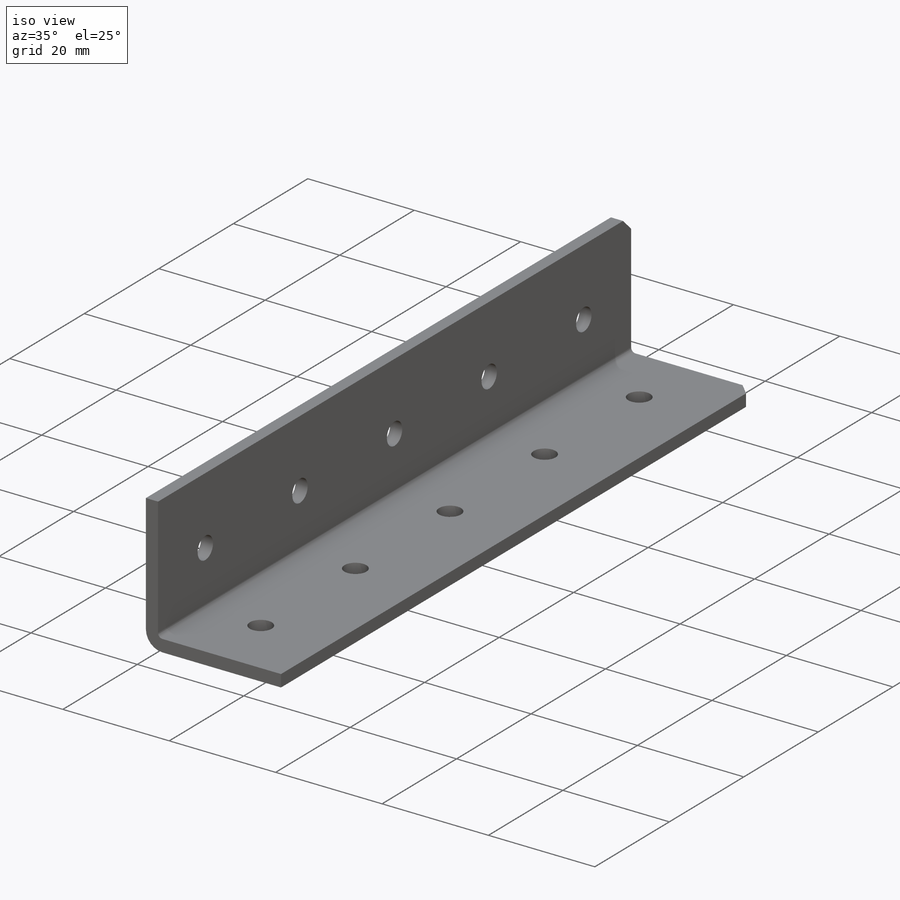
[diagram: iso view]
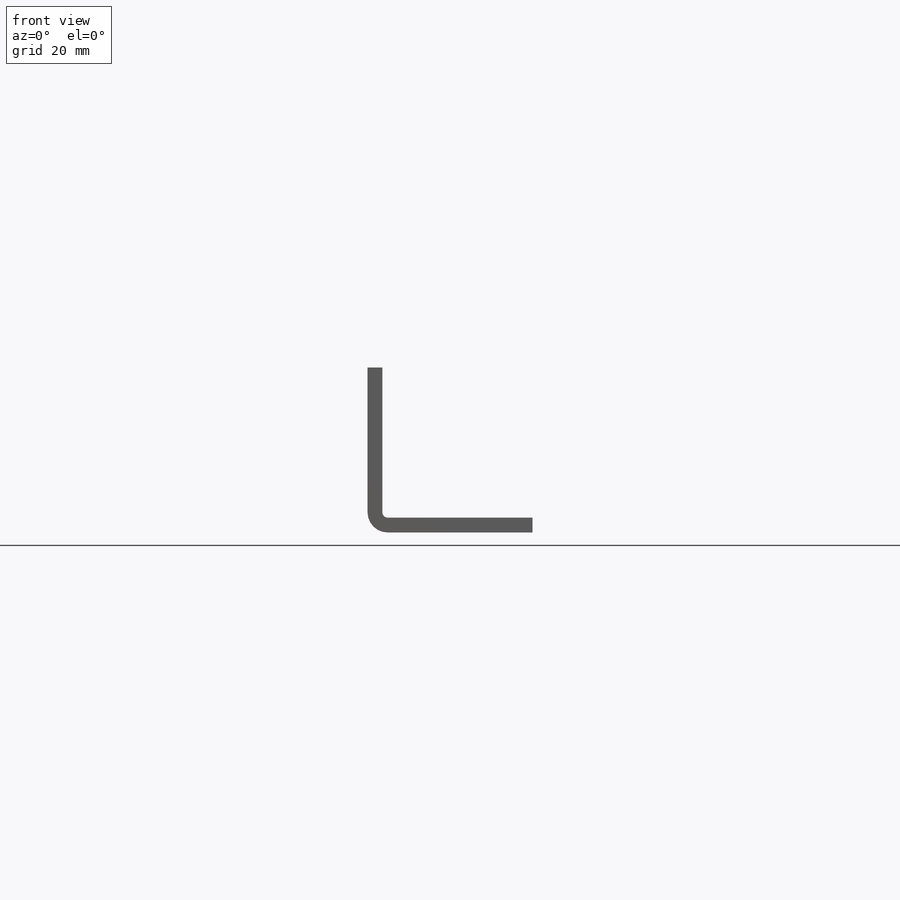
[diagram: front view]
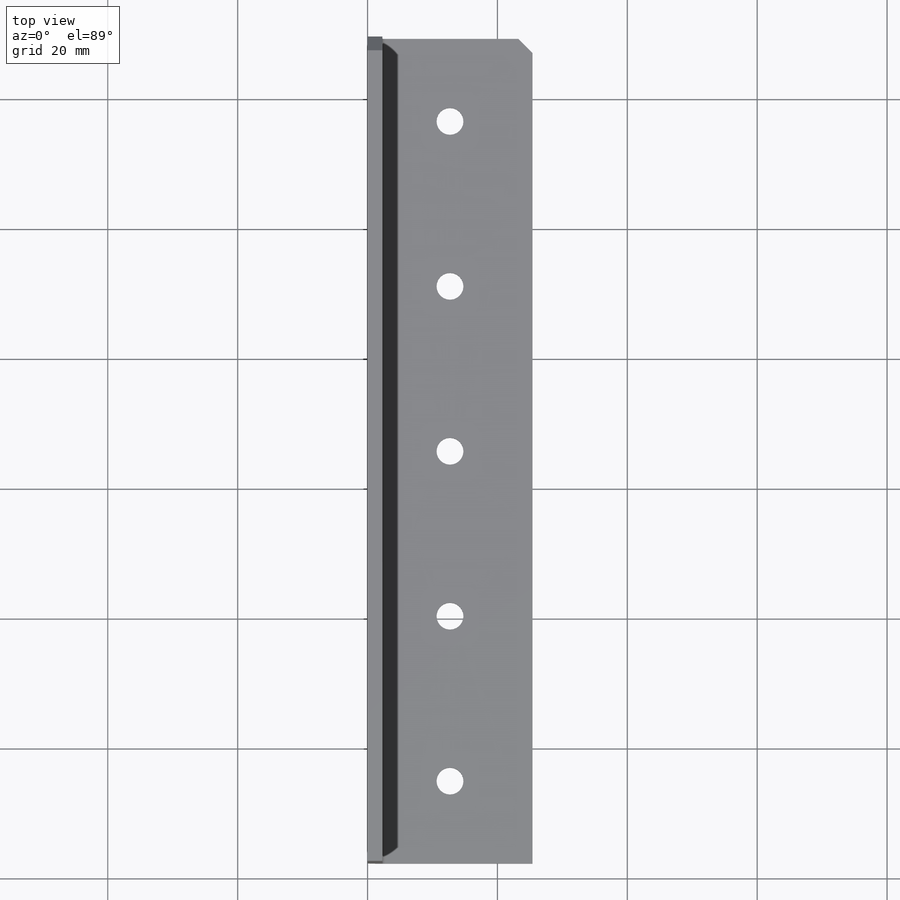
[diagram: top view]
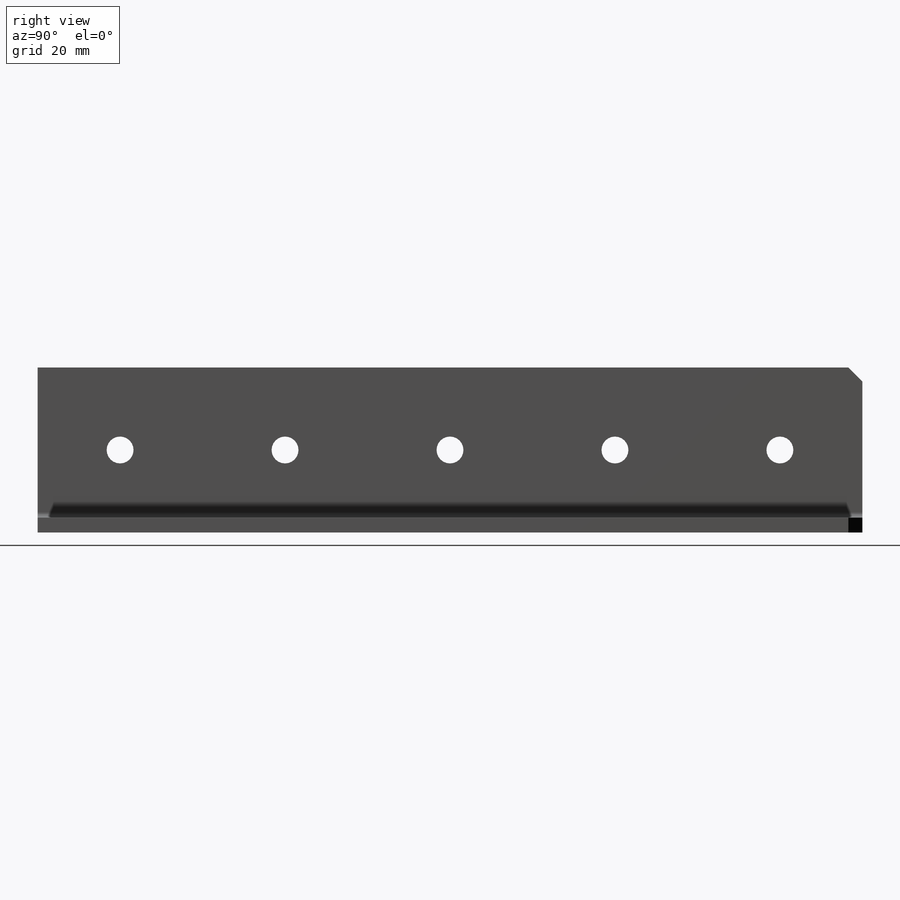
[diagram: right view]
SOLIDWORKS PART (.sldprt)
format: sldprt  version: not decoded by parser v0  size: 379,392 bytes
history: native  units: mm
features: sketch x9, cut_extrude x4, hole x2, fillet x2, material x1, plane x1, extrude x1, chamfer x1 (+13 scaffold rows collapsed)
feature tree (34):
  scaffold x13  (default folders/planes/origin — collapsed)
  material  "6061-T6 (SS)"
  plane  "Plane1"
  sketch  "Sketch1"
  extrude  "Boss-Extrude1"  Depth=25.4mm
  sketch  "Sketch2"
  cut_extrude  "Cut-Extrude1"  Depth=1498.6mm
  hole  "M3.5 Clearance Hole1"  Diameter=4.1402mm Depth=25.4mm
  sketch  "Sketch4"
  sketch  "Sketch3"  dims[hole-wizard template sketch: 61 standard entries collapsed; hole parameters above]
  hole  "M3.5 Clearance Hole2"  Diameter=4.1402mm Depth=25.4mm
  sketch  "Sketch6"
  sketch  "Sketch5"  dims[hole-wizard template sketch: 61 standard entries collapsed; hole parameters above]
  chamfer  "Chamfer1"  Distance=2.159mm Angle=45deg
  fillet  "Fillet1"  Radius=0.8128mm
  fillet  "Fillet2"  Radius=3.0988mm
  sketch  "Sketch8"
  cut_extrude  "Cut-Extrude3"  Depth=1371.6mm
  sketch  "Sketch11"
  cut_extrude  "Cut-Extrude6"  Depth=2.286mm
  sketch  "Sketch12"
  cut_extrude  "Cut-Extrude7"  Depth=2.54mm
decode coverage: 12 of 19 modeling features carry decoded parameters
note: ~ marks probable driven/reference dimensions
note: suppression state not decoded; provenance and decode notes live in map.json
